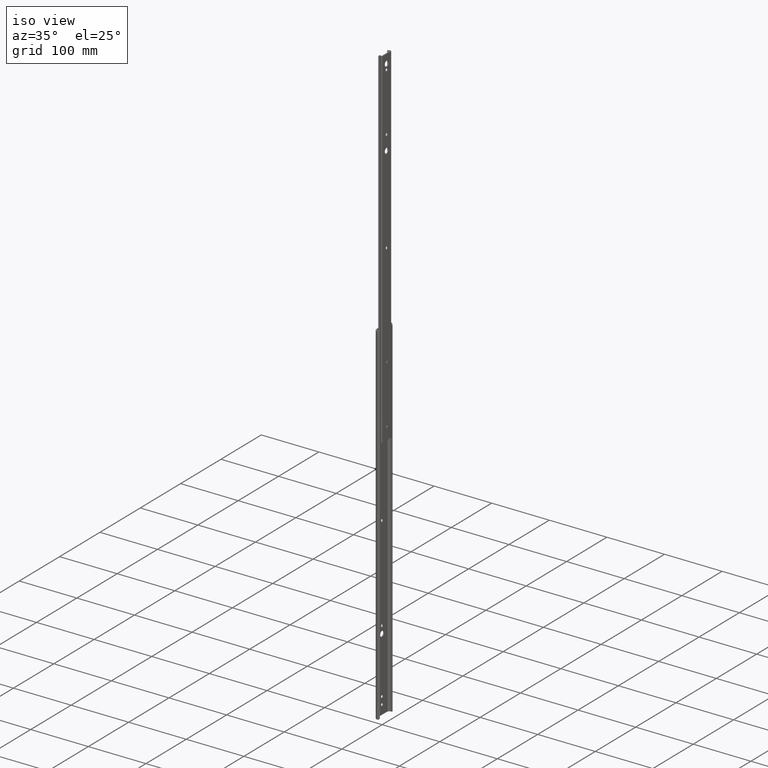
[diagram: clean part render]
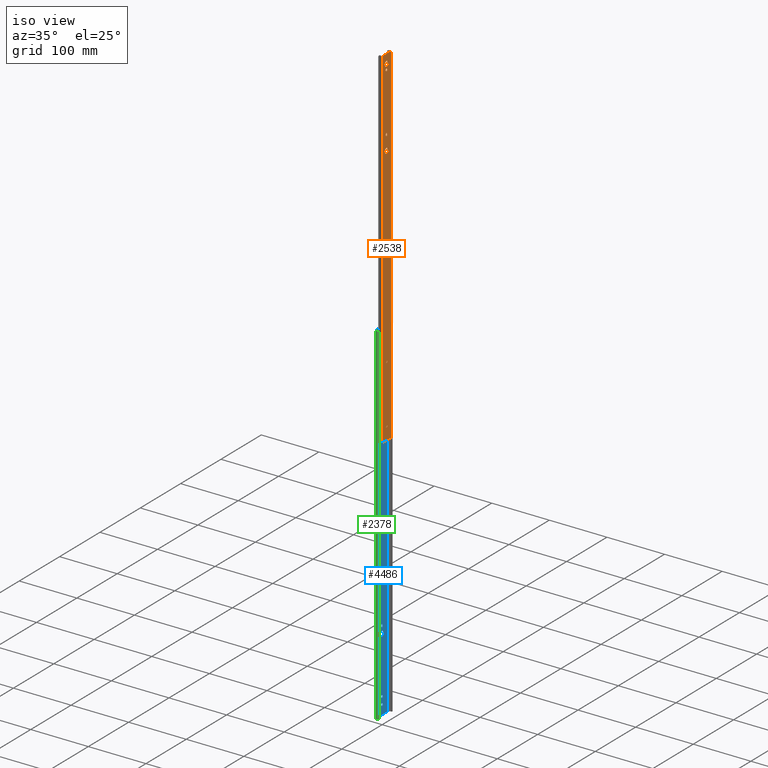
[diagram: same view with three faces highlighted in distinct colors, each labeled with its STEP entity id]
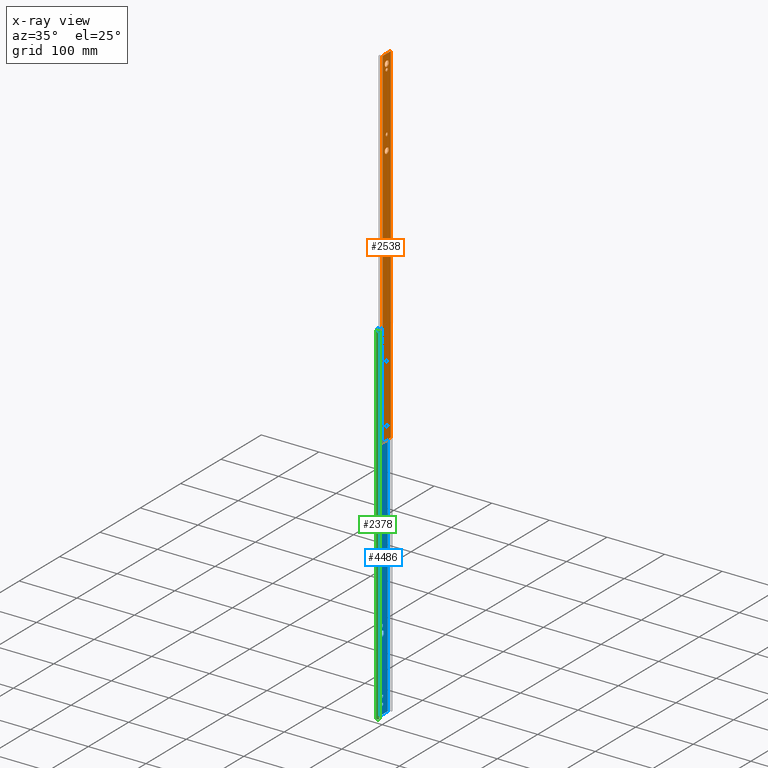
[diagram: x-ray of the same camera — body ghosted, the three highlighted faces saturated]
A machine part, iso view with three faces highlighted in distinct colors.
The next image is the same camera in x-ray (body ghosted, the three faces saturated) — at least one of them is partly hidden behind the body in this view.
Their STEP definitions:

[orange] entity #2538 — the highlighted planar face has unit normal (1, 0, 0).
#10 = VERTEX_POINT ( 'NONE', #2466 ) ;
#19 = DIRECTION ( 'NONE',  ( 0.0000000000000000000, 0.0000000000000000000, 1.000000000000000000 ) ) ;
#26 = CIRCLE ( 'NONE', #2643, 2.250000000000001776 ) ;
#33 = DIRECTION ( 'NONE',  ( -1.103235306215530105E-14, 1.000000000000000000, 0.0000000000000000000 ) ) ;
#38 = CIRCLE ( 'NONE', #4703, 2.249999999999641176 ) ;
#51 = EDGE_LOOP ( 'NONE', ( #1382, #2485, #3885, #3036 ) ) ;
#59 = ORIENTED_EDGE ( 'NONE', *, *, #3831, .F. ) ;
#71 = EDGE_CURVE ( 'NONE', #833, #2420, #4195, .T. ) ;
#78 = DIRECTION ( 'NONE',  ( -1.103235306215530262E-14, 1.000000000000000000, 0.0000000000000000000 ) ) ;
#94 = FACE_BOUND ( 'NONE', #422, .T. ) ;
#96 = VECTOR ( 'NONE', #4714, 1000.000000000000000 ) ;
#125 = EDGE_LOOP ( 'NONE', ( #4123, #3416, #3489, #4296 ) ) ;
#127 = LINE ( 'NONE', #3398, #3251 ) ;
#132 = AXIS2_PLACEMENT_3D ( 'NONE', #279, #3450, #648 ) ;
#174 = ORIENTED_EDGE ( 'NONE', *, *, #71, .F. ) ;
#186 = VERTEX_POINT ( 'NONE', #752 ) ;
#218 = DIRECTION ( 'NONE',  ( -0.0000000000000000000, -0.0000000000000000000, 1.000000000000000000 ) ) ;
#252 = LINE ( 'NONE', #5144, #3300 ) ;
#264 = CIRCLE ( 'NONE', #591, 4.750000000000000888 ) ;
#270 = LINE ( 'NONE', #4647, #5110 ) ;
#279 = CARTESIAN_POINT ( 'NONE',  ( -1.723411758436895479E-28, 1.562143405606533650E-14, -126.6000000000000227 ) ) ;
#280 = CARTESIAN_POINT ( 'NONE',  ( 4.412941224862033012E-15, -0.3999999999999919731, -23.14999999999999858 ) ) ;
#285 = AXIS2_PLACEMENT_3D ( 'NONE', #3616, #1174, #3142 ) ;
#300 = CARTESIAN_POINT ( 'NONE',  ( 2.482279438984920332E-14, -2.249999999999979572, -304.3999999999999773 ) ) ;
#307 = DIRECTION ( 'NONE',  ( -1.103235306215530262E-14, 1.000000000000000000, 0.0000000000000000000 ) ) ;
#354 = CARTESIAN_POINT ( 'NONE',  ( -2.923573561470756813E-14, 2.649999999999639311, -584.1999999999999318 ) ) ;
#364 = VECTOR ( 'NONE', #1747, 1000.000000000000000 ) ;
#368 = CARTESIAN_POINT ( 'NONE',  ( 1.137000000000000103E-13, -10.30605160652702068, -606.5999999999999091 ) ) ;
#378 = CIRCLE ( 'NONE', #3160, 2.250000000000000000 ) ;
#388 = EDGE_LOOP ( 'NONE', ( #2259, #1248, #4366, #3438 ) ) ;
#408 = DIRECTION ( 'NONE',  ( -1.103235306215530262E-14, 1.000000000000000000, 0.0000000000000000000 ) ) ;
#419 = LINE ( 'NONE', #4051, #778 ) ;
#422 = EDGE_LOOP ( 'NONE', ( #4014, #3342 ) ) ;
#462 = FACE_BOUND ( 'NONE', #125, .T. ) ;
#468 = DIRECTION ( 'NONE',  ( -1.103235306215530420E-14, 1.000000000000000000, 0.0000000000000000000 ) ) ;
#476 = DIRECTION ( 'NONE',  ( 0.0000000000000000000, 0.0000000000000000000, -1.000000000000000000 ) ) ;
#483 = DIRECTION ( 'NONE',  ( -1.103235306215530105E-14, 1.000000000000000000, 0.0000000000000000000 ) ) ;
#523 = CARTESIAN_POINT ( 'NONE',  ( -2.482279438984965454E-14, 2.250000000000020428, -305.1999999999999318 ) ) ;
#535 = CARTESIAN_POINT ( 'NONE',  ( -2.239583403857779695E-28, 2.030014260094981583E-14, -304.3999999999999773 ) ) ;
#550 = VERTEX_POINT ( 'NONE', #2216 ) ;
#577 = ORIENTED_EDGE ( 'NONE', *, *, #4394, .F. ) ;
#591 = AXIS2_PLACEMENT_3D ( 'NONE', #3898, #2649, #5139 ) ;
#612 = CARTESIAN_POINT ( 'NONE',  ( 2.482279438985029194E-14, -2.249999999999979572, -304.3999999999999773 ) ) ;
#623 = CARTESIAN_POINT ( 'NONE',  ( 1.137000000000000103E-13, -10.30605160652702068, 0.0000000000000000000 ) ) ;
#648 = DIRECTION ( 'NONE',  ( -1.103235306215530262E-14, 1.000000000000000000, 0.0000000000000000000 ) ) ;
#678 = EDGE_CURVE ( 'NONE', #2904, #4456, #790, .T. ) ;
#695 = AXIS2_PLACEMENT_3D ( 'NONE', #4222, #2311, #307 ) ;
#744 = CARTESIAN_POINT ( 'NONE',  ( -8.478460988836644674E-14, 10.30605160652707930, -606.5999999999999091 ) ) ;
#750 = DIRECTION ( 'NONE',  ( -1.103235306215530262E-14, 1.000000000000000000, 0.0000000000000000000 ) ) ;
#752 = CARTESIAN_POINT ( 'NONE',  ( 2.482279438985006475E-14, -2.249999999999958700, -482.2000000000000455 ) ) ;
#756 = VERTEX_POINT ( 'NONE', #1176 ) ;
#778 = VECTOR ( 'NONE', #2871, 1000.000000000000000 ) ;
#790 = LINE ( 'NONE', #368, #4012 ) ;
#806 = CIRCLE ( 'NONE', #4887, 4.750000000000000888 ) ;
#833 = VERTEX_POINT ( 'NONE', #3175 ) ;
#868 = ORIENTED_EDGE ( 'NONE', *, *, #4622, .F. ) ;
#893 = EDGE_CURVE ( 'NONE', #1008, #3894, #378, .T. ) ;
#930 = EDGE_CURVE ( 'NONE', #3312, #2379, #38, .T. ) ;
#963 = CARTESIAN_POINT ( 'NONE',  ( 4.412941224862033012E-15, -0.3999999999999919731, -586.4499999999995907 ) ) ;
#970 = CARTESIAN_POINT ( 'NONE',  ( 0.0000000000000000000, 9.950000000000000517E-14, -606.5999999999999091 ) ) ;
#972 = AXIS2_PLACEMENT_3D ( 'NONE', #535, #4650, #4953 ) ;
#994 = ORIENTED_EDGE ( 'NONE', *, *, #4995, .F. ) ;
#1008 = VERTEX_POINT ( 'NONE', #3584 ) ;
#1023 = VERTEX_POINT ( 'NONE', #1886 ) ;
#1098 = DIRECTION ( 'NONE',  ( 1.000000000000000000, 1.103235306215530262E-14, 0.0000000000000000000 ) ) ;
#1109 = EDGE_CURVE ( 'NONE', #1023, #186, #4096, .T. ) ;
#1115 = DIRECTION ( 'NONE',  ( 1.103235306215530262E-14, -1.000000000000000000, -0.0000000000000000000 ) ) ;
#1146 = DIRECTION ( 'NONE',  ( -1.103235306215530262E-14, 1.000000000000000000, 0.0000000000000000000 ) ) ;
#1174 = DIRECTION ( 'NONE',  ( 1.000000000000000000, 1.103235306215530262E-14, 0.0000000000000000000 ) ) ;
#1176 = CARTESIAN_POINT ( 'NONE',  ( 4.412941224863310967E-15, -0.4000000000000085154, -27.64999999999995239 ) ) ;
#1197 = VERTEX_POINT ( 'NONE', #1266 ) ;
#1200 = LINE ( 'NONE', #744, #1484 ) ;
#1212 = EDGE_CURVE ( 'NONE', #756, #3049, #4436, .T. ) ;
#1248 = ORIENTED_EDGE ( 'NONE', *, *, #3552, .F. ) ;
#1266 = CARTESIAN_POINT ( 'NONE',  ( 2.482279438984925696E-14, -2.249999999999984013, -127.3999999999999915 ) ) ;
#1295 = CARTESIAN_POINT ( 'NONE',  ( 2.482279438985034559E-14, -2.249999999999984013, -126.5999999999999943 ) ) ;
#1331 = CARTESIAN_POINT ( 'NONE',  ( -4.412941224862097699E-15, 0.3999999999999978573, -27.65000000000000213 ) ) ;
#1340 = EDGE_CURVE ( 'NONE', #1984, #2567, #3509, .T. ) ;
#1382 = ORIENTED_EDGE ( 'NONE', *, *, #3213, .F. ) ;
#1389 = AXIS2_PLACEMENT_3D ( 'NONE', #2167, #3782, #78 ) ;
#1416 = CARTESIAN_POINT ( 'NONE',  ( -2.482279438984965454E-14, 2.250000000000020428, -304.3999999999999773 ) ) ;
#1425 = CARTESIAN_POINT ( 'NONE',  ( 0.0000000000000000000, 9.950000000000000517E-14, -606.5999999999999091 ) ) ;
#1471 = CARTESIAN_POINT ( 'NONE',  ( 4.412941224862033012E-15, -0.3999999999999919731, -23.14999999999999858 ) ) ;
#1473 = AXIS2_PLACEMENT_3D ( 'NONE', #3964, #3657, #33 ) ;
#1484 = VECTOR ( 'NONE', #19, 1000.000000000000000 ) ;
#1500 = CARTESIAN_POINT ( 'NONE',  ( 4.412941224862033012E-15, -0.3999999999999919731, -581.9500000000002728 ) ) ;
#1645 = ORIENTED_EDGE ( 'NONE', *, *, #1212, .F. ) ;
#1717 = CARTESIAN_POINT ( 'NONE',  ( -8.478460988836644674E-14, 10.30605160652707930, -606.5999999999999091 ) ) ;
#1730 = ORIENTED_EDGE ( 'NONE', *, *, #4160, .F. ) ;
#1736 = VERTEX_POINT ( 'NONE', #2189 ) ;
#1747 = DIRECTION ( 'NONE',  ( -1.103235306215530262E-14, 1.000000000000000000, 0.0000000000000000000 ) ) ;
#1799 = FACE_BOUND ( 'NONE', #4524, .T. ) ;
#1811 = CIRCLE ( 'NONE', #4713, 2.249999999999641176 ) ;
#1827 = EDGE_CURVE ( 'NONE', #4773, #1197, #3008, .T. ) ;
#1828 = EDGE_CURVE ( 'NONE', #2420, #3312, #3684, .T. ) ;
#1870 = EDGE_LOOP ( 'NONE', ( #2299, #2424, #4443, #59 ) ) ;
#1886 = CARTESIAN_POINT ( 'NONE',  ( -2.482279438984987227E-14, 2.250000000000039968, -482.2000000000000455 ) ) ;
#1952 = CIRCLE ( 'NONE', #3906, 4.750000000000004441 ) ;
#1984 = VERTEX_POINT ( 'NONE', #1416 ) ;
#2015 = EDGE_CURVE ( 'NONE', #3430, #2787, #1200, .T. ) ;
#2046 = VERTEX_POINT ( 'NONE', #3642 ) ;
#2068 = CIRCLE ( 'NONE', #1473, 4.750000000000004441 ) ;
#2105 = PLANE ( 'NONE',  #4199 ) ;
#2153 = CARTESIAN_POINT ( 'NONE',  ( 4.412941224862033012E-15, -0.3999999999999919731, -584.1999999999999318 ) ) ;
#2167 = CARTESIAN_POINT ( 'NONE',  ( -4.412941224862102432E-15, 0.3999999999999983014, -584.1999999999999318 ) ) ;
#2176 = DIRECTION ( 'NONE',  ( 1.000000000000000000, 1.103235306215530262E-14, 0.0000000000000000000 ) ) ;
#2189 = CARTESIAN_POINT ( 'NONE',  ( 2.482279438984897297E-14, -2.249999999999958700, -482.9999999999999432 ) ) ;
#2196 = LINE ( 'NONE', #300, #3595 ) ;
#2198 = FACE_BOUND ( 'NONE', #5077, .T. ) ;
#2216 = CARTESIAN_POINT ( 'NONE',  ( 5.240367704530508024E-14, -4.750000000006108891, -152.4000000000000909 ) ) ;
#2233 = DIRECTION ( 'NONE',  ( -8.276690555865081331E-15, 1.000000000000000000, 0.0000000000000000000 ) ) ;
#2259 = ORIENTED_EDGE ( 'NONE', *, *, #5245, .F. ) ;
#2273 = LINE ( 'NONE', #5134, #4331 ) ;
#2275 = EDGE_CURVE ( 'NONE', #4699, #3360, #806, .T. ) ;
#2299 = ORIENTED_EDGE ( 'NONE', *, *, #1109, .F. ) ;
#2307 = EDGE_CURVE ( 'NONE', #3399, #1023, #127, .T. ) ;
#2311 = DIRECTION ( 'NONE',  ( 1.000000000000000000, 1.103235306215530262E-14, 0.0000000000000000000 ) ) ;
#2312 = CARTESIAN_POINT ( 'NONE',  ( -4.412941224862102432E-15, 0.3999999999999983014, -584.1999999999999318 ) ) ;
#2326 = CIRCLE ( 'NONE', #4105, 2.250000000000001776 ) ;
#2352 = VERTEX_POINT ( 'NONE', #1471 ) ;
#2379 = VERTEX_POINT ( 'NONE', #3830 ) ;
#2393 = VECTOR ( 'NONE', #2233, 1000.000000000000000 ) ;
#2403 = VERTEX_POINT ( 'NONE', #1500 ) ;
#2420 = VERTEX_POINT ( 'NONE', #4466 ) ;
#2424 = ORIENTED_EDGE ( 'NONE', *, *, #2307, .F. ) ;
#2438 = CARTESIAN_POINT ( 'NONE',  ( 5.240367704523767997E-14, -4.749999999999999112, -15.90000000000000036 ) ) ;
#2466 = CARTESIAN_POINT ( 'NONE',  ( -4.412941224862092177E-15, 0.3999999999999974132, -23.14999999999999858 ) ) ;
#2472 = CARTESIAN_POINT ( 'NONE',  ( -2.482279438984960090E-14, 2.250000000000015543, -127.3999999999999915 ) ) ;
#2474 = VERTEX_POINT ( 'NONE', #2782 ) ;
#2484 = CARTESIAN_POINT ( 'NONE',  ( 2.482279438984925696E-14, -2.249999999999984013, -126.6000000000000227 ) ) ;
#2485 = ORIENTED_EDGE ( 'NONE', *, *, #678, .F. ) ;
#2538 = ADVANCED_FACE ( 'NONE', ( #94, #462, #1799, #2198, #3017, #4245, #5082, #3817 ), #2105, .T. ) ;
#2567 = VERTEX_POINT ( 'NONE', #612 ) ;
#2575 = AXIS2_PLACEMENT_3D ( 'NONE', #3259, #4905, #3180 ) ;
#2615 = VERTEX_POINT ( 'NONE', #2472 ) ;
#2643 = AXIS2_PLACEMENT_3D ( 'NONE', #4070, #3266, #468 ) ;
#2649 = DIRECTION ( 'NONE',  ( 1.000000000000000000, 1.103235306215530262E-14, 0.0000000000000000000 ) ) ;
#2682 = EDGE_CURVE ( 'NONE', #3360, #4699, #264, .T. ) ;
#2700 = EDGE_CURVE ( 'NONE', #2379, #2403, #3472, .T. ) ;
#2705 = DIRECTION ( 'NONE',  ( -1.103235306215529947E-14, 1.000000000000000000, -0.0000000000000000000 ) ) ;
#2711 = CIRCLE ( 'NONE', #695, 2.250000000000000000 ) ;
#2726 = CIRCLE ( 'NONE', #285, 2.250000000000001776 ) ;
#2782 = CARTESIAN_POINT ( 'NONE',  ( -2.923573561471155029E-14, 2.649999999999999911, -25.39999999999999858 ) ) ;
#2787 = VERTEX_POINT ( 'NONE', #3928 ) ;
#2856 = CARTESIAN_POINT ( 'NONE',  ( -2.482279438984987227E-14, 2.250000000000039968, -482.9999999999999432 ) ) ;
#2871 = DIRECTION ( 'NONE',  ( 0.0000000000000000000, 0.0000000000000000000, -1.000000000000000000 ) ) ;
#2890 = DIRECTION ( 'NONE',  ( -1.103235306215529947E-14, 1.000000000000000000, 0.0000000000000000000 ) ) ;
#2904 = VERTEX_POINT ( 'NONE', #3683 ) ;
#2941 = CARTESIAN_POINT ( 'NONE',  ( -4.412941224862102432E-15, 0.3999999999999983014, -25.39999999999999858 ) ) ;
#2989 = CARTESIAN_POINT ( 'NONE',  ( -5.240367704523771152E-14, 4.750000000000002665, -15.90000000000000036 ) ) ;
#3008 = LINE ( 'NONE', #2484, #4364 ) ;
#3017 = FACE_BOUND ( 'NONE', #1870, .T. ) ;
#3036 = ORIENTED_EDGE ( 'NONE', *, *, #2015, .T. ) ;
#3049 = VERTEX_POINT ( 'NONE', #1331 ) ;
#3122 = EDGE_LOOP ( 'NONE', ( #1730, #3886, #577, #994, #1645 ) ) ;
#3126 = EDGE_CURVE ( 'NONE', #1197, #2615, #2711, .T. ) ;
#3135 = ORIENTED_EDGE ( 'NONE', *, *, #930, .F. ) ;
#3142 = DIRECTION ( 'NONE',  ( -1.103235306215530420E-14, 1.000000000000000000, 0.0000000000000000000 ) ) ;
#3160 = AXIS2_PLACEMENT_3D ( 'NONE', #5191, #4382, #750 ) ;
#3175 = CARTESIAN_POINT ( 'NONE',  ( 4.412941224863310967E-15, -0.4000000000000085154, -586.4499999999995907 ) ) ;
#3180 = DIRECTION ( 'NONE',  ( -1.103235306215530105E-14, 1.000000000000000000, 0.0000000000000000000 ) ) ;
#3188 = EDGE_CURVE ( 'NONE', #10, #2352, #3822, .T. ) ;
#3213 = EDGE_CURVE ( 'NONE', #4456, #2787, #252, .T. ) ;
#3251 = VECTOR ( 'NONE', #3943, 1000.000000000000000 ) ;
#3258 = DIRECTION ( 'NONE',  ( -1.103235306215530105E-14, 1.000000000000000000, 0.0000000000000000000 ) ) ;
#3259 = CARTESIAN_POINT ( 'NONE',  ( -4.476327200681612720E-28, 4.057454629544921572E-14, -482.2000000000000455 ) ) ;
#3266 = DIRECTION ( 'NONE',  ( 1.000000000000000000, 1.103235306215530262E-14, 0.0000000000000000000 ) ) ;
#3300 = VECTOR ( 'NONE', #2705, 1000.000000000000000 ) ;
#3312 = VERTEX_POINT ( 'NONE', #354 ) ;
#3342 = ORIENTED_EDGE ( 'NONE', *, *, #2682, .F. ) ;
#3360 = VERTEX_POINT ( 'NONE', #2438 ) ;
#3398 = CARTESIAN_POINT ( 'NONE',  ( -2.482279438984987227E-14, 2.250000000000039968, -482.2000000000000455 ) ) ;
#3399 = VERTEX_POINT ( 'NONE', #2856 ) ;
#3407 = EDGE_CURVE ( 'NONE', #4265, #550, #1952, .T. ) ;
#3416 = ORIENTED_EDGE ( 'NONE', *, *, #3607, .F. ) ;
#3430 = VERTEX_POINT ( 'NONE', #1717 ) ;
#3438 = ORIENTED_EDGE ( 'NONE', *, *, #1827, .F. ) ;
#3450 = DIRECTION ( 'NONE',  ( 1.000000000000000000, 1.103235306215530262E-14, 0.0000000000000000000 ) ) ;
#3472 = LINE ( 'NONE', #5192, #4667 ) ;
#3489 = ORIENTED_EDGE ( 'NONE', *, *, #893, .F. ) ;
#3509 = CIRCLE ( 'NONE', #972, 2.250000000000000000 ) ;
#3552 = EDGE_CURVE ( 'NONE', #2615, #2046, #270, .T. ) ;
#3584 = CARTESIAN_POINT ( 'NONE',  ( 2.482279438984920332E-14, -2.249999999999979572, -305.1999999999999318 ) ) ;
#3595 = VECTOR ( 'NONE', #4738, 1000.000000000000000 ) ;
#3607 = EDGE_CURVE ( 'NONE', #3894, #1984, #2273, .T. ) ;
#3616 = CARTESIAN_POINT ( 'NONE',  ( 4.412941224862033012E-15, -0.3999999999999919731, -25.39999999999999858 ) ) ;
#3642 = CARTESIAN_POINT ( 'NONE',  ( -2.482279438984960090E-14, 2.250000000000015543, -126.6000000000000227 ) ) ;
#3657 = DIRECTION ( 'NONE',  ( 1.000000000000000000, 1.103235306215530262E-14, 0.0000000000000000000 ) ) ;
#3683 = CARTESIAN_POINT ( 'NONE',  ( 1.137000000000000103E-13, -10.30605160652702068, -606.5999999999999091 ) ) ;
#3684 = CIRCLE ( 'NONE', #1389, 2.249999999999641176 ) ;
#3700 = DIRECTION ( 'NONE',  ( -1.103235306215530105E-14, 1.000000000000000000, 0.0000000000000000000 ) ) ;
#3711 = CARTESIAN_POINT ( 'NONE',  ( 6.734777570858304193E-26, -6.104570378517766019E-12, -152.4000000000000909 ) ) ;
#3782 = DIRECTION ( 'NONE',  ( 1.000000000000000000, 1.103235306215530262E-14, 0.0000000000000000000 ) ) ;
#3791 = DIRECTION ( 'NONE',  ( -1.103235306215530262E-14, 1.000000000000000000, 0.0000000000000000000 ) ) ;
#3817 = FACE_OUTER_BOUND ( 'NONE', #51, .T. ) ;
#3822 = LINE ( 'NONE', #280, #96 ) ;
#3830 = CARTESIAN_POINT ( 'NONE',  ( -4.412941224862092177E-15, 0.3999999999999974132, -581.9500000000002728 ) ) ;
#3831 = EDGE_CURVE ( 'NONE', #186, #1736, #419, .T. ) ;
#3885 = ORIENTED_EDGE ( 'NONE', *, *, #4479, .T. ) ;
#3886 = ORIENTED_EDGE ( 'NONE', *, *, #3188, .F. ) ;
#3894 = VERTEX_POINT ( 'NONE', #523 ) ;
#3898 = CARTESIAN_POINT ( 'NONE',  ( -2.148207002476486499E-29, 1.947188410644291380E-15, -15.90000000000000036 ) ) ;
#3906 = AXIS2_PLACEMENT_3D ( 'NONE', #3711, #4924, #483 ) ;
#3928 = CARTESIAN_POINT ( 'NONE',  ( -8.478460988836644674E-14, 10.30605160652707930, 0.0000000000000000000 ) ) ;
#3943 = DIRECTION ( 'NONE',  ( -0.0000000000000000000, -0.0000000000000000000, 1.000000000000000000 ) ) ;
#3964 = CARTESIAN_POINT ( 'NONE',  ( 6.734777570858304193E-26, -6.104570378517766019E-12, -152.4000000000000909 ) ) ;
#3999 = ORIENTED_EDGE ( 'NONE', *, *, #2700, .F. ) ;
#4012 = VECTOR ( 'NONE', #4102, 1000.000000000000000 ) ;
#4014 = ORIENTED_EDGE ( 'NONE', *, *, #2275, .F. ) ;
#4015 = VECTOR ( 'NONE', #408, 1000.000000000000000 ) ;
#4039 = CARTESIAN_POINT ( 'NONE',  ( 4.412941224862033012E-15, -0.3999999999999919731, -27.65000000000000213 ) ) ;
#4051 = CARTESIAN_POINT ( 'NONE',  ( 2.482279438984897297E-14, -2.249999999999958700, -482.2000000000000455 ) ) ;
#4061 = ORIENTED_EDGE ( 'NONE', *, *, #3407, .F. ) ;
#4066 = ORIENTED_EDGE ( 'NONE', *, *, #1828, .F. ) ;
#4070 = CARTESIAN_POINT ( 'NONE',  ( -4.412941224862102432E-15, 0.3999999999999983014, -25.39999999999999858 ) ) ;
#4096 = CIRCLE ( 'NONE', #2575, 2.249999999999999556 ) ;
#4102 = DIRECTION ( 'NONE',  ( 0.0000000000000000000, 0.0000000000000000000, 1.000000000000000000 ) ) ;
#4105 = AXIS2_PLACEMENT_3D ( 'NONE', #2941, #2176, #4146 ) ;
#4123 = ORIENTED_EDGE ( 'NONE', *, *, #1340, .F. ) ;
#4128 = CARTESIAN_POINT ( 'NONE',  ( -2.148207002476486499E-29, 1.947188410644291380E-15, -15.90000000000000036 ) ) ;
#4146 = DIRECTION ( 'NONE',  ( -1.103235306215530420E-14, 1.000000000000000000, 0.0000000000000000000 ) ) ;
#4149 = ORIENTED_EDGE ( 'NONE', *, *, #5046, .F. ) ;
#4160 = EDGE_CURVE ( 'NONE', #2352, #756, #2726, .T. ) ;
#4195 = LINE ( 'NONE', #963, #364 ) ;
#4199 = AXIS2_PLACEMENT_3D ( 'NONE', #1425, #4677, #2890 ) ;
#4222 = CARTESIAN_POINT ( 'NONE',  ( -1.739624641474453248E-28, 1.576839167196301363E-14, -127.3999999999999915 ) ) ;
#4245 = FACE_BOUND ( 'NONE', #388, .T. ) ;
#4265 = VERTEX_POINT ( 'NONE', #4812 ) ;
#4296 = ORIENTED_EDGE ( 'NONE', *, *, #4857, .F. ) ;
#4308 = CARTESIAN_POINT ( 'NONE',  ( -4.492540083719169817E-28, 4.072150391134688654E-14, -482.9999999999999432 ) ) ;
#4331 = VECTOR ( 'NONE', #4736, 1000.000000000000000 ) ;
#4364 = VECTOR ( 'NONE', #476, 1000.000000000000000 ) ;
#4366 = ORIENTED_EDGE ( 'NONE', *, *, #3126, .F. ) ;
#4370 = CIRCLE ( 'NONE', #132, 2.250000000000000000 ) ;
#4382 = DIRECTION ( 'NONE',  ( 1.000000000000000000, 1.103235306215530262E-14, 0.0000000000000000000 ) ) ;
#4394 = EDGE_CURVE ( 'NONE', #2474, #10, #26, .T. ) ;
#4436 = LINE ( 'NONE', #4039, #4015 ) ;
#4443 = ORIENTED_EDGE ( 'NONE', *, *, #4561, .F. ) ;
#4456 = VERTEX_POINT ( 'NONE', #623 ) ;
#4466 = CARTESIAN_POINT ( 'NONE',  ( -4.412941224862097699E-15, 0.3999999999999978573, -586.4499999999995907 ) ) ;
#4479 = EDGE_CURVE ( 'NONE', #2904, #3430, #4659, .T. ) ;
#4516 = DIRECTION ( 'NONE',  ( 1.000000000000000000, 1.103235306215530262E-14, 0.0000000000000000000 ) ) ;
#4524 = EDGE_LOOP ( 'NONE', ( #4061, #868 ) ) ;
#4559 = DIRECTION ( 'NONE',  ( 1.000000000000000000, 1.103235306215530262E-14, 0.0000000000000000000 ) ) ;
#4561 = EDGE_CURVE ( 'NONE', #1736, #3399, #4683, .T. ) ;
#4614 = AXIS2_PLACEMENT_3D ( 'NONE', #4308, #1098, #3258 ) ;
#4622 = EDGE_CURVE ( 'NONE', #550, #4265, #2068, .T. ) ;
#4647 = CARTESIAN_POINT ( 'NONE',  ( -2.482279438984960090E-14, 2.250000000000015543, -126.6000000000000227 ) ) ;
#4650 = DIRECTION ( 'NONE',  ( 1.000000000000000000, 1.103235306215530262E-14, 0.0000000000000000000 ) ) ;
#4659 = LINE ( 'NONE', #970, #2393 ) ;
#4667 = VECTOR ( 'NONE', #1115, 1000.000000000000000 ) ;
#4677 = DIRECTION ( 'NONE',  ( 1.000000000000000000, 1.103235306215529947E-14, -0.0000000000000000000 ) ) ;
#4683 = CIRCLE ( 'NONE', #4614, 2.249999999999999556 ) ;
#4699 = VERTEX_POINT ( 'NONE', #2989 ) ;
#4703 = AXIS2_PLACEMENT_3D ( 'NONE', #2312, #4717, #1146 ) ;
#4713 = AXIS2_PLACEMENT_3D ( 'NONE', #2153, #4516, #3791 ) ;
#4714 = DIRECTION ( 'NONE',  ( 1.103235306215530262E-14, -1.000000000000000000, -0.0000000000000000000 ) ) ;
#4717 = DIRECTION ( 'NONE',  ( 1.000000000000000000, 1.103235306215530262E-14, 0.0000000000000000000 ) ) ;
#4736 = DIRECTION ( 'NONE',  ( -0.0000000000000000000, -0.0000000000000000000, 1.000000000000000000 ) ) ;
#4738 = DIRECTION ( 'NONE',  ( 0.0000000000000000000, 0.0000000000000000000, -1.000000000000000000 ) ) ;
#4773 = VERTEX_POINT ( 'NONE', #1295 ) ;
#4812 = CARTESIAN_POINT ( 'NONE',  ( -5.240367704517038066E-14, 4.749999999993899991, -152.4000000000000909 ) ) ;
#4857 = EDGE_CURVE ( 'NONE', #2567, #1008, #2196, .T. ) ;
#4887 = AXIS2_PLACEMENT_3D ( 'NONE', #4128, #4559, #3700 ) ;
#4905 = DIRECTION ( 'NONE',  ( 1.000000000000000000, 1.103235306215530262E-14, 0.0000000000000000000 ) ) ;
#4924 = DIRECTION ( 'NONE',  ( 1.000000000000000000, 1.103235306215530262E-14, 0.0000000000000000000 ) ) ;
#4953 = DIRECTION ( 'NONE',  ( -1.103235306215530262E-14, 1.000000000000000000, 0.0000000000000000000 ) ) ;
#4995 = EDGE_CURVE ( 'NONE', #3049, #2474, #2326, .T. ) ;
#5046 = EDGE_CURVE ( 'NONE', #2403, #833, #1811, .T. ) ;
#5077 = EDGE_LOOP ( 'NONE', ( #4149, #3999, #3135, #4066, #174 ) ) ;
#5082 = FACE_BOUND ( 'NONE', #3122, .T. ) ;
#5110 = VECTOR ( 'NONE', #218, 1000.000000000000000 ) ;
#5134 = CARTESIAN_POINT ( 'NONE',  ( -2.482279438984965454E-14, 2.250000000000020428, -304.3999999999999773 ) ) ;
#5139 = DIRECTION ( 'NONE',  ( -1.103235306215530105E-14, 1.000000000000000000, 0.0000000000000000000 ) ) ;
#5144 = CARTESIAN_POINT ( 'NONE',  ( 0.0000000000000000000, 9.950000000000000517E-14, 0.0000000000000000000 ) ) ;
#5191 = CARTESIAN_POINT ( 'NONE',  ( -2.255796286895336343E-28, 2.044710021684748034E-14, -305.1999999999999318 ) ) ;
#5192 = CARTESIAN_POINT ( 'NONE',  ( 4.412941224862033012E-15, -0.3999999999999919731, -581.9500000000002728 ) ) ;
#5245 = EDGE_CURVE ( 'NONE', #2046, #4773, #4370, .T. ) ;

[blue] entity #4486 — the highlighted planar face has unit normal (1, -0, 0).
#13 = EDGE_CURVE ( 'NONE', #805, #3837, #1883, .T. ) ;
#21 = AXIS2_PLACEMENT_3D ( 'NONE', #2487, #1290, #1661 ) ;
#22 = AXIS2_PLACEMENT_3D ( 'NONE', #2166, #3803, #575 ) ;
#31 = CIRCLE ( 'NONE', #2898, 2.250000000000005329 ) ;
#32 = CARTESIAN_POINT ( 'NONE',  ( 1.461933268199342504E-14, 2.250000000001150635, -469.5000000000000568 ) ) ;
#36 = VERTEX_POINT ( 'NONE', #2524 ) ;
#53 = CARTESIAN_POINT ( 'NONE',  ( 8.632441935927393671E-14, 13.28582827844788916, 0.0000000000000000000 ) ) ;
#67 = CARTESIAN_POINT ( 'NONE',  ( -1.461933268197844300E-14, -2.249999999998845368, -470.3000000000000114 ) ) ;
#68 = VERTEX_POINT ( 'NONE', #4629 ) ;
#83 = ORIENTED_EDGE ( 'NONE', *, *, #4037, .F. ) ;
#95 = VERTEX_POINT ( 'NONE', #3848 ) ;
#105 = VERTEX_POINT ( 'NONE', #2152 ) ;
#119 = EDGE_CURVE ( 'NONE', #2639, #5097, #2640, .T. ) ;
#122 = ORIENTED_EDGE ( 'NONE', *, *, #950, .F. ) ;
#144 = DIRECTION ( 'NONE',  ( 6.497481191993755816E-15, 1.000000000000000000, 0.0000000000000000000 ) ) ;
#146 = EDGE_CURVE ( 'NONE', #316, #4340, #1283, .T. ) ;
#164 = DIRECTION ( 'NONE',  ( 1.000000000000000000, -6.497481191993753449E-15, 0.0000000000000000000 ) ) ;
#171 = CARTESIAN_POINT ( 'NONE',  ( 4.787134332115642588E-14, 7.367677090030496423, -1.121813326174415426 ) ) ;
#185 = VECTOR ( 'NONE', #4157, 1000.000000000000000 ) ;
#189 = VERTEX_POINT ( 'NONE', #1141 ) ;
#215 = AXIS2_PLACEMENT_3D ( 'NONE', #237, #2241, #2295 ) ;
#219 = ORIENTED_EDGE ( 'NONE', *, *, #2925, .F. ) ;
#227 = CARTESIAN_POINT ( 'NONE',  ( 2.598992476797951267E-15, 0.4000000000000691891, -28.60000000000000497 ) ) ;
#234 = ORIENTED_EDGE ( 'NONE', *, *, #5155, .F. ) ;
#237 = CARTESIAN_POINT ( 'NONE',  ( 1.201525051188588167E-29, 1.849216666712504918E-15, -126.5999999999999943 ) ) ;
#266 = DIRECTION ( 'NONE',  ( 1.000000000000000000, -6.497481191993754238E-15, 0.0000000000000000000 ) ) ;
#281 = CARTESIAN_POINT ( 'NONE',  ( -1.461933268222152891E-14, -2.250000000036257664, -127.4000000000000341 ) ) ;
#303 = AXIS2_PLACEMENT_3D ( 'NONE', #2796, #2030, #2873 ) ;
#310 = ORIENTED_EDGE ( 'NONE', *, *, #649, .F. ) ;
#316 = VERTEX_POINT ( 'NONE', #2118 ) ;
#319 = EDGE_CURVE ( 'NONE', #5043, #463, #2303, .T. ) ;
#353 = CIRCLE ( 'NONE', #3643, 2.249999999999863221 ) ;
#367 = AXIS2_PLACEMENT_3D ( 'NONE', #2830, #3651, #3708 ) ;
#369 = VERTEX_POINT ( 'NONE', #3732 ) ;
#400 = VERTEX_POINT ( 'NONE', #4458 ) ;
#404 = EDGE_CURVE ( 'NONE', #1420, #467, #711, .T. ) ;
#418 = EDGE_LOOP ( 'NONE', ( #3881, #4945, #5135, #1298, #2919 ) ) ;
#433 = EDGE_LOOP ( 'NONE', ( #1860, #234 ) ) ;
#453 = VERTEX_POINT ( 'NONE', #555 ) ;
#463 = VERTEX_POINT ( 'NONE', #4590 ) ;
#466 = EDGE_CURVE ( 'NONE', #2765, #2218, #1293, .T. ) ;
#467 = VERTEX_POINT ( 'NONE', #1418 ) ;
#493 = CARTESIAN_POINT ( 'NONE',  ( 4.771262743228146904E-14, 7.360230118118327169, -1.000000000000000000 ) ) ;
#498 = LINE ( 'NONE', #869, #1617 ) ;
#501 = DIRECTION ( 'NONE',  ( 6.497481191993753449E-15, 1.000000000000000000, 0.0000000000000000000 ) ) ;
#513 = ORIENTED_EDGE ( 'NONE', *, *, #1407, .F. ) ;
#514 = CIRCLE ( 'NONE', #1525, 2.250000000000005329 ) ;
#522 = VERTEX_POINT ( 'NONE', #3809 ) ;
#526 = DIRECTION ( 'NONE',  ( 1.000000000000000000, -6.497481191993754238E-15, 0.0000000000000000000 ) ) ;
#531 = CARTESIAN_POINT ( 'NONE',  ( -2.598992476797510294E-15, -0.4000000000000012990, -581.0000000000001137 ) ) ;
#532 = EDGE_CURVE ( 'NONE', #4864, #3374, #2245, .T. ) ;
#555 = CARTESIAN_POINT ( 'NONE',  ( -1.461933268222152891E-14, -2.250000000036257664, -126.6000000000002359 ) ) ;
#561 = EDGE_CURVE ( 'NONE', #5100, #4636, #1716, .T. ) ;
#562 = DIRECTION ( 'NONE',  ( 6.497481191993753449E-15, 1.000000000000000000, 0.0000000000000000000 ) ) ;
#568 = EDGE_CURVE ( 'NONE', #522, #1422, #3074, .T. ) ;
#570 = CARTESIAN_POINT ( 'NONE',  ( 4.873110893995315126E-14, 7.500000000000000000, -2.199999999999997957 ) ) ;
#571 = LINE ( 'NONE', #3325, #3339 ) ;
#575 = DIRECTION ( 'NONE',  ( 6.497481191993755027E-15, 1.000000000000000000, 0.0000000000000000000 ) ) ;
#616 = AXIS2_PLACEMENT_3D ( 'NONE', #5006, #1035, #562 ) ;
#631 = AXIS2_PLACEMENT_3D ( 'NONE', #2677, #749, #2701 ) ;
#632 = CIRCLE ( 'NONE', #3163, 2.250000000000005329 ) ;
#633 = DIRECTION ( 'NONE',  ( -6.497481191993755816E-15, -1.000000000000000000, -0.0000000000000000000 ) ) ;
#649 = EDGE_CURVE ( 'NONE', #5097, #3392, #1156, .T. ) ;
#655 = FACE_BOUND ( 'NONE', #3463, .T. ) ;
#668 = VERTEX_POINT ( 'NONE', #4892 ) ;
#679 = EDGE_CURVE ( 'NONE', #36, #105, #31, .T. ) ;
#680 = DIRECTION ( 'NONE',  ( -0.0000000000000000000, -0.0000000000000000000, -1.000000000000000000 ) ) ;
#681 = ORIENTED_EDGE ( 'NONE', *, *, #1476, .F. ) ;
#687 = ORIENTED_EDGE ( 'NONE', *, *, #1019, .F. ) ;
#698 = DIRECTION ( 'NONE',  ( -0.0000000000000000000, -0.0000000000000000000, -1.000000000000000000 ) ) ;
#710 = DIRECTION ( 'NONE',  ( -6.497481191993754238E-15, -1.000000000000000000, -0.0000000000000000000 ) ) ;
#711 = CIRCLE ( 'NONE', #367, 2.250000000000005329 ) ;
#713 = DIRECTION ( 'NONE',  ( 1.000000000000000000, -6.497481191993753449E-15, 0.0000000000000000000 ) ) ;
#721 = CARTESIAN_POINT ( 'NONE',  ( -5.442694905877232259E-14, -8.360230118118328946, -1.000000000000000000 ) ) ;
#722 = VERTEX_POINT ( 'NONE', #2024 ) ;
#726 = LINE ( 'NONE', #1089, #3847 ) ;
#749 = DIRECTION ( 'NONE',  ( 1.000000000000000000, -6.497481191993754238E-15, 0.0000000000000000000 ) ) ;
#755 = ORIENTED_EDGE ( 'NONE', *, *, #679, .F. ) ;
#757 = CARTESIAN_POINT ( 'NONE',  ( -2.598992476797515421E-15, -0.4000000000000021316, -583.2499999999998863 ) ) ;
#761 = CARTESIAN_POINT ( 'NONE',  ( -1.461933268222152891E-14, -2.250000000036257664, -127.4000000000000341 ) ) ;
#777 = CARTESIAN_POINT ( 'NONE',  ( -1.461933268197844300E-14, -2.249999999998845368, -469.5000000000000568 ) ) ;
#783 = AXIS2_PLACEMENT_3D ( 'NONE', #1363, #3887, #3377 ) ;
#804 = EDGE_CURVE ( 'NONE', #522, #5204, #1066, .T. ) ;
#805 = VERTEX_POINT ( 'NONE', #2305 ) ;
#810 = VECTOR ( 'NONE', #1672, 1000.000000000000000 ) ;
#815 = CARTESIAN_POINT ( 'NONE',  ( -2.598992476797470062E-15, -0.3999999999999951372, -28.60000000000000497 ) ) ;
#828 = DIRECTION ( 'NONE',  ( 6.497481191993755816E-15, 1.000000000000000000, 0.0000000000000000000 ) ) ;
#839 = CARTESIAN_POINT ( 'NONE',  ( 2.598992476796943103E-15, 0.3999999999999140354, -581.0000000000001137 ) ) ;
#856 = VECTOR ( 'NONE', #984, 1000.000000000000000 ) ;
#861 = EDGE_CURVE ( 'NONE', #105, #5157, #3581, .T. ) ;
#862 = EDGE_LOOP ( 'NONE', ( #4294, #2584, #2057, #4459, #4056, #2746, #4468, #4720, #5054, #681, #3367, #4210, #4578 ) ) ;
#869 = CARTESIAN_POINT ( 'NONE',  ( 8.632441935927393671E-14, 13.28582827844788916, -609.5999999999999091 ) ) ;
#904 = CARTESIAN_POINT ( 'NONE',  ( -1.461933268221442916E-14, -2.250000000035164760, -304.3999999999999773 ) ) ;
#905 = VERTEX_POINT ( 'NONE', #3108 ) ;
#938 = CARTESIAN_POINT ( 'NONE',  ( 1.461933268198595295E-14, 2.250000000000001332, -41.70000000000001705 ) ) ;
#943 = FACE_BOUND ( 'NONE', #3353, .T. ) ;
#947 = ORIENTED_EDGE ( 'NONE', *, *, #3634, .F. ) ;
#950 = EDGE_CURVE ( 'NONE', #3837, #36, #5197, .T. ) ;
#955 = VECTOR ( 'NONE', #4287, 1000.000000000000000 ) ;
#964 = CARTESIAN_POINT ( 'NONE',  ( 3.086303566193069592E-14, 4.749999999993899102, -482.5999999999999091 ) ) ;
#965 = DIRECTION ( 'NONE',  ( 0.0000000000000000000, 0.0000000000000000000, 1.000000000000000000 ) ) ;
#984 = DIRECTION ( 'NONE',  ( 0.0000000000000000000, 0.0000000000000000000, 1.000000000000000000 ) ) ;
#997 = DIRECTION ( 'NONE',  ( 1.000000000000000000, -6.497481191993753449E-15, 0.0000000000000000000 ) ) ;
#1004 = DIRECTION ( 'NONE',  ( 0.0000000000000000000, 0.0000000000000000000, 1.000000000000000000 ) ) ;
#1007 = CARTESIAN_POINT ( 'NONE',  ( -2.598992476797515421E-15, -0.4000000000000021316, -578.7500000000002274 ) ) ;
#1018 = PLANE ( 'NONE',  #4513 ) ;
#1019 = EDGE_CURVE ( 'NONE', #453, #4226, #4305, .T. ) ;
#1020 = DIRECTION ( 'NONE',  ( 6.497481191993750294E-15, 1.000000000000000000, 0.0000000000000000000 ) ) ;
#1035 = DIRECTION ( 'NONE',  ( 1.000000000000000000, -6.497481191993754238E-15, 0.0000000000000000000 ) ) ;
#1050 = CARTESIAN_POINT ( 'NONE',  ( -1.461933268198592455E-14, -2.249999999999996891, -41.70000000000001705 ) ) ;
#1051 = VECTOR ( 'NONE', #3502, 1000.000000000000000 ) ;
#1066 = LINE ( 'NONE', #2702, #4609 ) ;
#1076 = CARTESIAN_POINT ( 'NONE',  ( -1.461933268198527138E-14, -2.249999999999896083, -40.89999999999997726 ) ) ;
#1081 = CARTESIAN_POINT ( 'NONE',  ( 2.598992476799391727E-15, 0.4000000000002908451, -578.7500000000002274 ) ) ;
#1089 = CARTESIAN_POINT ( 'NONE',  ( -2.598992476797501616E-15, -0.3999999999999999667, -595.9499999999998181 ) ) ;
#1094 = LINE ( 'NONE', #1884, #2374 ) ;
#1097 = VERTEX_POINT ( 'NONE', #777 ) ;
#1118 = DIRECTION ( 'NONE',  ( 1.000000000000000000, -6.497481191993754238E-15, 0.0000000000000000000 ) ) ;
#1123 = EDGE_CURVE ( 'NONE', #1975, #3547, #4088, .T. ) ;
#1141 = CARTESIAN_POINT ( 'NONE',  ( 8.632441935927393671E-14, 13.28582827844788916, -609.5999999999999091 ) ) ;
#1156 = LINE ( 'NONE', #2771, #2479 ) ;
#1160 = DIRECTION ( 'NONE',  ( -7.914797957524653599E-16, -0.1218133261744156343, -0.9925530280878323008 ) ) ;
#1187 = ORIENTED_EDGE ( 'NONE', *, *, #13, .F. ) ;
#1207 = CARTESIAN_POINT ( 'NONE',  ( -1.461933268198592455E-14, -2.249999999999996891, -41.70000000000001705 ) ) ;
#1216 = CARTESIAN_POINT ( 'NONE',  ( 2.598992476797496094E-15, 0.3999999999999991340, -15.90000000000000391 ) ) ;
#1233 = DIRECTION ( 'NONE',  ( 6.497481191993755027E-15, 1.000000000000000000, 0.0000000000000000000 ) ) ;
#1283 = CIRCLE ( 'NONE', #2973, 1.000000000000000888 ) ;
#1290 = DIRECTION ( 'NONE',  ( 1.000000000000000000, -6.497481191993754238E-15, 0.0000000000000000000 ) ) ;
#1293 = CIRCLE ( 'NONE', #2313, 2.249999999999863221 ) ;
#1294 = DIRECTION ( 'NONE',  ( 1.000000000000000000, -6.497481191993754238E-15, 0.0000000000000000000 ) ) ;
#1298 = ORIENTED_EDGE ( 'NONE', *, *, #466, .F. ) ;
#1299 = CARTESIAN_POINT ( 'NONE',  ( 1.461933268199345344E-14, 2.250000000001150191, -470.2999999999999545 ) ) ;
#1343 = DIRECTION ( 'NONE',  ( 6.497481191993753449E-15, 1.000000000000000000, 0.0000000000000000000 ) ) ;
#1354 = CARTESIAN_POINT ( 'NONE',  ( -1.461933268221442916E-14, -2.250000000035164760, -305.2000000000000455 ) ) ;
#1363 = CARTESIAN_POINT ( 'NONE',  ( 2.040444164743638317E-27, 3.140361787053557620E-13, -127.4000000000000341 ) ) ;
#1407 = EDGE_CURVE ( 'NONE', #722, #3688, #726, .T. ) ;
#1411 = DIRECTION ( 'NONE',  ( 6.497481191993753449E-15, 1.000000000000000000, 0.0000000000000000000 ) ) ;
#1418 = CARTESIAN_POINT ( 'NONE',  ( 2.598992476797487022E-15, 0.3999999999999977462, -13.64999999999999858 ) ) ;
#1420 = VERTEX_POINT ( 'NONE', #4351 ) ;
#1422 = VERTEX_POINT ( 'NONE', #2302 ) ;
#1454 = LINE ( 'NONE', #3954, #1478 ) ;
#1468 = EDGE_CURVE ( 'NONE', #3392, #1097, #2489, .T. ) ;
#1470 = EDGE_CURVE ( 'NONE', #5204, #3051, #2724, .T. ) ;
#1476 = EDGE_CURVE ( 'NONE', #4480, #4544, #1454, .T. ) ;
#1478 = VECTOR ( 'NONE', #1934, 1000.000000000000227 ) ;
#1502 = EDGE_CURVE ( 'NONE', #668, #2428, #3873, .T. ) ;
#1525 = AXIS2_PLACEMENT_3D ( 'NONE', #3318, #3344, #144 ) ;
#1527 = ORIENTED_EDGE ( 'NONE', *, *, #3048, .F. ) ;
#1536 = EDGE_CURVE ( 'NONE', #2854, #95, #2996, .T. ) ;
#1572 = VERTEX_POINT ( 'NONE', #53 ) ;
#1614 = CARTESIAN_POINT ( 'NONE',  ( 2.598992476796957302E-15, 0.3999999999999162004, -593.7000000000000455 ) ) ;
#1617 = VECTOR ( 'NONE', #2112, 1000.000000000000000 ) ;
#1618 = ORIENTED_EDGE ( 'NONE', *, *, #4038, .F. ) ;
#1632 = CARTESIAN_POINT ( 'NONE',  ( 2.598992476797487022E-15, 0.3999999999999977462, -26.34999999999999787 ) ) ;
#1661 = DIRECTION ( 'NONE',  ( 6.497481191993754238E-15, 1.000000000000000000, 0.0000000000000000000 ) ) ;
#1663 = VERTEX_POINT ( 'NONE', #2430 ) ;
#1672 = DIRECTION ( 'NONE',  ( -0.0000000000000000000, -0.0000000000000000000, -1.000000000000000000 ) ) ;
#1675 = DIRECTION ( 'NONE',  ( 0.0000000000000000000, 1.000000000000000000, 0.0000000000000000000 ) ) ;
#1712 = CARTESIAN_POINT ( 'NONE',  ( -2.598992476797466512E-15, -0.3999999999999945821, -18.15000000000000924 ) ) ;
#1716 = CIRCLE ( 'NONE', #2146, 2.249999999999948486 ) ;
#1732 = FACE_BOUND ( 'NONE', #5124, .T. ) ;
#1760 = EDGE_CURVE ( 'NONE', #2428, #1822, #5222, .T. ) ;
#1769 = DIRECTION ( 'NONE',  ( 6.497481191993750294E-15, 1.000000000000000000, 0.0000000000000000000 ) ) ;
#1770 = CARTESIAN_POINT ( 'NONE',  ( 1.461933268198627796E-14, 2.250000000000051070, -40.89999999999999147 ) ) ;
#1772 = CARTESIAN_POINT ( 'NONE',  ( -4.873110893995315126E-14, -7.500000000000000000, -3.699999999999999734 ) ) ;
#1785 = VECTOR ( 'NONE', #4259, 1000.000000000000000 ) ;
#1791 = EDGE_CURVE ( 'NONE', #2969, #668, #1805, .T. ) ;
#1805 = CIRCLE ( 'NONE', #4272, 2.250000000036298520 ) ;
#1814 = CIRCLE ( 'NONE', #2834, 1.000000000000000888 ) ;
#1822 = VERTEX_POINT ( 'NONE', #904 ) ;
#1825 = CARTESIAN_POINT ( 'NONE',  ( 0.0000000000000000000, -13.28582827844802061, -609.5999999999999091 ) ) ;
#1832 = DIRECTION ( 'NONE',  ( 6.497481191993755816E-15, 1.000000000000000000, 0.0000000000000000000 ) ) ;
#1837 = FACE_BOUND ( 'NONE', #2041, .T. ) ;
#1839 = VERTEX_POINT ( 'NONE', #4161 ) ;
#1854 = DIRECTION ( 'NONE',  ( 1.000000000000000000, -6.497481191993754238E-15, 0.0000000000000000000 ) ) ;
#1860 = ORIENTED_EDGE ( 'NONE', *, *, #319, .F. ) ;
#1877 = CARTESIAN_POINT ( 'NONE',  ( 1.461933268222916192E-14, 2.250000000037432279, -305.2000000000000455 ) ) ;
#1883 = CIRCLE ( 'NONE', #4691, 2.250000000000005329 ) ;
#1884 = CARTESIAN_POINT ( 'NONE',  ( 8.632441935927393671E-14, 13.28582827844788916, 0.0000000000000000000 ) ) ;
#1894 = EDGE_CURVE ( 'NONE', #400, #453, #2072, .T. ) ;
#1917 = EDGE_CURVE ( 'NONE', #369, #3029, #3116, .T. ) ;
#1934 = DIRECTION ( 'NONE',  ( -7.914797957524653599E-16, -0.1218133261744156343, 0.9925530280878323008 ) ) ;
#1947 = EDGE_LOOP ( 'NONE', ( #755, #122, #1187, #2958, #3892 ) ) ;
#1957 = CIRCLE ( 'NONE', #2626, 2.249999999999863221 ) ;
#1975 = VERTEX_POINT ( 'NONE', #1081 ) ;
#2024 = CARTESIAN_POINT ( 'NONE',  ( -2.598992476797472823E-15, -0.4000000000000010214, -595.9499999999998181 ) ) ;
#2030 = DIRECTION ( 'NONE',  ( 1.000000000000000000, -6.497481191993754238E-15, 0.0000000000000000000 ) ) ;
#2041 = EDGE_LOOP ( 'NONE', ( #5079, #5115, #3522, #4230 ) ) ;
#2057 = ORIENTED_EDGE ( 'NONE', *, *, #3796, .F. ) ;
#2067 = VECTOR ( 'NONE', #698, 1000.000000000000000 ) ;
#2072 = CIRCLE ( 'NONE', #215, 2.250000000036298520 ) ;
#2081 = ORIENTED_EDGE ( 'NONE', *, *, #1894, .F. ) ;
#2112 = DIRECTION ( 'NONE',  ( 0.0000000000000000000, 0.0000000000000000000, 1.000000000000000000 ) ) ;
#2118 = CARTESIAN_POINT ( 'NONE',  ( 5.432043795321358658E-14, 8.360230118118327169, 0.0000000000000000000 ) ) ;
#2146 = AXIS2_PLACEMENT_3D ( 'NONE', #3838, #266, #3496 ) ;
#2152 = CARTESIAN_POINT ( 'NONE',  ( -2.598992476797423125E-15, -0.3999999999999941380, -30.85000000000004405 ) ) ;
#2166 = CARTESIAN_POINT ( 'NONE',  ( -2.598992476797496094E-15, -0.3999999999999991340, -593.7000000000000455 ) ) ;
#2182 = FACE_BOUND ( 'NONE', #418, .T. ) ;
#2186 = ORIENTED_EDGE ( 'NONE', *, *, #1468, .F. ) ;
#2188 = EDGE_CURVE ( 'NONE', #1822, #2969, #571, .T. ) ;
#2218 = VERTEX_POINT ( 'NONE', #5013 ) ;
#2241 = DIRECTION ( 'NONE',  ( 1.000000000000000000, -6.497481191993754238E-15, 0.0000000000000000000 ) ) ;
#2245 = LINE ( 'NONE', #4263, #5212 ) ;
#2251 = CARTESIAN_POINT ( 'NONE',  ( -4.873110893995315126E-14, -7.500000000000000000, -3.699999999999999734 ) ) ;
#2258 = DIRECTION ( 'NONE',  ( -6.497481191993754238E-15, -1.000000000000000000, -0.0000000000000000000 ) ) ;
#2269 = DIRECTION ( 'NONE',  ( 0.0000000000000000000, 0.0000000000000000000, 1.000000000000000000 ) ) ;
#2281 = CARTESIAN_POINT ( 'NONE',  ( 2.598992476797507138E-15, 0.4000000000000008549, -30.85000000000000853 ) ) ;
#2291 = ORIENTED_EDGE ( 'NONE', *, *, #1760, .F. ) ;
#2293 = CARTESIAN_POINT ( 'NONE',  ( -2.598992476797485050E-15, -0.4000000000000027978, -583.2499999999998863 ) ) ;
#2295 = DIRECTION ( 'NONE',  ( 6.497481191993753449E-15, 1.000000000000000000, 0.0000000000000000000 ) ) ;
#2302 = CARTESIAN_POINT ( 'NONE',  ( -5.432043795321351716E-14, -8.360230118118330722, 0.0000000000000000000 ) ) ;
#2303 = CIRCLE ( 'NONE', #21, 4.749999999999976019 ) ;
#2305 = CARTESIAN_POINT ( 'NONE',  ( 1.721832515878393301E-14, 2.650000000000074518, -28.60000000000000497 ) ) ;
#2313 = AXIS2_PLACEMENT_3D ( 'NONE', #2984, #526, #3010 ) ;
#2325 = AXIS2_PLACEMENT_3D ( 'NONE', #5021, #4997, #1343 ) ;
#2333 = CARTESIAN_POINT ( 'NONE',  ( 2.598992476796957302E-15, 0.3999999999999162004, -593.7000000000000455 ) ) ;
#2358 = EDGE_CURVE ( 'NONE', #4340, #4544, #1814, .T. ) ;
#2368 = DIRECTION ( 'NONE',  ( 6.497481191993755027E-15, 1.000000000000000000, 0.0000000000000000000 ) ) ;
#2374 = VECTOR ( 'NONE', #2653, 1000.000000000000000 ) ;
#2390 = CARTESIAN_POINT ( 'NONE',  ( -2.598992476797515421E-15, -0.4000000000000021316, -578.7500000000002274 ) ) ;
#2428 = VERTEX_POINT ( 'NONE', #4853 ) ;
#2430 = CARTESIAN_POINT ( 'NONE',  ( 4.873110893995315126E-14, 7.500000000000000000, -3.699999999999997957 ) ) ;
#2439 = CARTESIAN_POINT ( 'NONE',  ( 1.721832515878201450E-14, 2.649999999999779199, -593.7000000000000455 ) ) ;
#2473 = EDGE_LOOP ( 'NONE', ( #1527, #3319, #4008, #3637, #219 ) ) ;
#2477 = EDGE_CURVE ( 'NONE', #4251, #2765, #4415, .T. ) ;
#2479 = VECTOR ( 'NONE', #2269, 1000.000000000000000 ) ;
#2487 = CARTESIAN_POINT ( 'NONE',  ( -3.948243146683875206E-26, -6.076574952689252480E-12, -482.5999999999999091 ) ) ;
#2489 = CIRCLE ( 'NONE', #631, 2.249999999999998224 ) ;
#2516 = LINE ( 'NONE', #1712, #3044 ) ;
#2524 = CARTESIAN_POINT ( 'NONE',  ( -2.598992476797473612E-15, -0.3999999999999956923, -26.34999999999999787 ) ) ;
#2535 = LINE ( 'NONE', #4536, #185 ) ;
#2549 = CIRCLE ( 'NONE', #5101, 2.249999999999863221 ) ;
#2551 = CARTESIAN_POINT ( 'NONE',  ( -2.598992476797501616E-15, -0.3999999999999999667, -591.4500000000001592 ) ) ;
#2552 = AXIS2_PLACEMENT_3D ( 'NONE', #839, #2951, #1233 ) ;
#2578 = EDGE_CURVE ( 'NONE', #1097, #2639, #5061, .T. ) ;
#2584 = ORIENTED_EDGE ( 'NONE', *, *, #568, .T. ) ;
#2626 = AXIS2_PLACEMENT_3D ( 'NONE', #2333, #3219, #5211 ) ;
#2636 = LINE ( 'NONE', #3058, #955 ) ;
#2639 = VERTEX_POINT ( 'NONE', #3104 ) ;
#2640 = CIRCLE ( 'NONE', #616, 2.249999999999998224 ) ;
#2645 = LINE ( 'NONE', #2697, #856 ) ;
#2653 = DIRECTION ( 'NONE',  ( 6.497481191993752660E-15, 1.000000000000000000, -0.0000000000000000000 ) ) ;
#2677 = CARTESIAN_POINT ( 'NONE',  ( 7.490116198240590965E-27, 1.152772278505395188E-12, -469.5000000000000568 ) ) ;
#2697 = CARTESIAN_POINT ( 'NONE',  ( 1.461933268222205902E-14, 2.250000000036339376, -127.4000000000000341 ) ) ;
#2701 = DIRECTION ( 'NONE',  ( 6.497481191993753449E-15, 1.000000000000000000, 0.0000000000000000000 ) ) ;
#2702 = CARTESIAN_POINT ( 'NONE',  ( -4.697678901811484297E-14, -7.230000000000000426, -1.770839271567072711E-15 ) ) ;
#2720 = VECTOR ( 'NONE', #1675, 1000.000000000000000 ) ;
#2724 = LINE ( 'NONE', #2251, #2067 ) ;
#2746 = ORIENTED_EDGE ( 'NONE', *, *, #3908, .T. ) ;
#2762 = CARTESIAN_POINT ( 'NONE',  ( -2.598992476797473612E-15, -0.3999999999999956923, -26.34999999999999787 ) ) ;
#2765 = VERTEX_POINT ( 'NONE', #5107 ) ;
#2771 = CARTESIAN_POINT ( 'NONE',  ( 1.461933268199342504E-14, 2.250000000001150635, -470.3000000000000114 ) ) ;
#2796 = CARTESIAN_POINT ( 'NONE',  ( 1.297010485720133455E-29, 1.996174282610190330E-15, -41.70000000000001705 ) ) ;
#2824 = AXIS2_PLACEMENT_3D ( 'NONE', #3131, #5084, #3474 ) ;
#2825 = LINE ( 'NONE', #5259, #4939 ) ;
#2830 = CARTESIAN_POINT ( 'NONE',  ( 2.598992476797496094E-15, 0.3999999999999991340, -15.90000000000000391 ) ) ;
#2834 = AXIS2_PLACEMENT_3D ( 'NONE', #4254, #713, #1020 ) ;
#2835 = DIRECTION ( 'NONE',  ( 1.000000000000000000, -6.497481191993754238E-15, 0.0000000000000000000 ) ) ;
#2836 = DIRECTION ( 'NONE',  ( -6.497481191993754238E-15, -1.000000000000000000, -0.0000000000000000000 ) ) ;
#2854 = VERTEX_POINT ( 'NONE', #1207 ) ;
#2873 = DIRECTION ( 'NONE',  ( 6.497481191993753449E-15, 1.000000000000000000, 0.0000000000000000000 ) ) ;
#2884 = DIRECTION ( 'NONE',  ( 1.000000000000000000, -6.497481191993754238E-15, 0.0000000000000000000 ) ) ;
#2898 = AXIS2_PLACEMENT_3D ( 'NONE', #815, #4502, #5235 ) ;
#2919 = ORIENTED_EDGE ( 'NONE', *, *, #2477, .F. ) ;
#2925 = EDGE_CURVE ( 'NONE', #1839, #3779, #2516, .T. ) ;
#2945 = FACE_BOUND ( 'NONE', #433, .T. ) ;
#2951 = DIRECTION ( 'NONE',  ( 1.000000000000000000, -6.497481191993754238E-15, 0.0000000000000000000 ) ) ;
#2953 = VECTOR ( 'NONE', #965, 1000.000000000000000 ) ;
#2958 = ORIENTED_EDGE ( 'NONE', *, *, #5221, .F. ) ;
#2969 = VERTEX_POINT ( 'NONE', #1354 ) ;
#2973 = AXIS2_PLACEMENT_3D ( 'NONE', #3790, #164, #1769 ) ;
#2974 = CIRCLE ( 'NONE', #22, 2.249999999999863221 ) ;
#2975 = DIRECTION ( 'NONE',  ( -0.0000000000000000000, -0.0000000000000000000, -1.000000000000000000 ) ) ;
#2980 = DIRECTION ( 'NONE',  ( 1.000000000000000000, -6.497481191993754238E-15, 0.0000000000000000000 ) ) ;
#2984 = CARTESIAN_POINT ( 'NONE',  ( 2.598992476796943103E-15, 0.3999999999999140354, -581.0000000000001137 ) ) ;
#2996 = CIRCLE ( 'NONE', #303, 2.249999999999999112 ) ;
#3010 = DIRECTION ( 'NONE',  ( 6.497481191993755027E-15, 1.000000000000000000, 0.0000000000000000000 ) ) ;
#3020 = EDGE_CURVE ( 'NONE', #95, #5100, #4552, .T. ) ;
#3029 = VERTEX_POINT ( 'NONE', #2551 ) ;
#3044 = VECTOR ( 'NONE', #501, 1000.000000000000000 ) ;
#3048 = EDGE_CURVE ( 'NONE', #905, #1839, #514, .T. ) ;
#3051 = VERTEX_POINT ( 'NONE', #1772 ) ;
#3052 = FACE_BOUND ( 'NONE', #2473, .T. ) ;
#3058 = CARTESIAN_POINT ( 'NONE',  ( 4.873110893995315126E-14, 7.500000000000000000, -2.199999999999997957 ) ) ;
#3074 = CIRCLE ( 'NONE', #3931, 1.000000000000000000 ) ;
#3104 = CARTESIAN_POINT ( 'NONE',  ( -1.461933268197844300E-14, -2.249999999998845368, -470.3000000000000114 ) ) ;
#3108 = CARTESIAN_POINT ( 'NONE',  ( -2.598992476797473612E-15, -0.3999999999999956923, -13.64999999999999858 ) ) ;
#3116 = LINE ( 'NONE', #4260, #4277 ) ;
#3127 = CARTESIAN_POINT ( 'NONE',  ( -2.598992476797466512E-15, -0.3999999999999945821, -30.85000000000000853 ) ) ;
#3131 = CARTESIAN_POINT ( 'NONE',  ( -3.948243146683875206E-26, -6.076574952689252480E-12, -482.5999999999999091 ) ) ;
#3147 = CARTESIAN_POINT ( 'NONE',  ( 2.598992476799421704E-15, 0.4000000000002955081, -595.9499999999998181 ) ) ;
#3163 = AXIS2_PLACEMENT_3D ( 'NONE', #1216, #2835, #828 ) ;
#3173 = CARTESIAN_POINT ( 'NONE',  ( 2.598992476797506350E-15, 0.4000000000000007438, -18.15000000000000924 ) ) ;
#3179 = DIRECTION ( 'NONE',  ( 6.497481191993755027E-15, 1.000000000000000000, 0.0000000000000000000 ) ) ;
#3205 = EDGE_CURVE ( 'NONE', #316, #1572, #1094, .T. ) ;
#3219 = DIRECTION ( 'NONE',  ( 1.000000000000000000, -6.497481191993754238E-15, 0.0000000000000000000 ) ) ;
#3243 = EDGE_CURVE ( 'NONE', #3688, #4557, #2549, .T. ) ;
#3246 = CIRCLE ( 'NONE', #2824, 4.749999999999976019 ) ;
#3318 = CARTESIAN_POINT ( 'NONE',  ( -2.598992476797470062E-15, -0.3999999999999951372, -15.90000000000000391 ) ) ;
#3319 = ORIENTED_EDGE ( 'NONE', *, *, #4624, .F. ) ;
#3325 = CARTESIAN_POINT ( 'NONE',  ( -1.461933268221442916E-14, -2.250000000035164760, -305.2000000000000455 ) ) ;
#3339 = VECTOR ( 'NONE', #2975, 1000.000000000000000 ) ;
#3344 = DIRECTION ( 'NONE',  ( 1.000000000000000000, -6.497481191993754238E-15, 0.0000000000000000000 ) ) ;
#3353 = EDGE_LOOP ( 'NONE', ( #83, #687, #2081, #947 ) ) ;
#3367 = ORIENTED_EDGE ( 'NONE', *, *, #4152, .F. ) ;
#3374 = VERTEX_POINT ( 'NONE', #4545 ) ;
#3377 = DIRECTION ( 'NONE',  ( 6.497481191993753449E-15, 1.000000000000000000, 0.0000000000000000000 ) ) ;
#3392 = VERTEX_POINT ( 'NONE', #32 ) ;
#3395 = FACE_BOUND ( 'NONE', #1947, .T. ) ;
#3426 = CIRCLE ( 'NONE', #4809, 2.250000000000005329 ) ;
#3463 = EDGE_LOOP ( 'NONE', ( #5071, #4333, #2291, #3823 ) ) ;
#3474 = DIRECTION ( 'NONE',  ( 6.497481191993754238E-15, 1.000000000000000000, 0.0000000000000000000 ) ) ;
#3481 = EDGE_CURVE ( 'NONE', #3547, #4251, #353, .T. ) ;
#3496 = DIRECTION ( 'NONE',  ( 6.497481191993755816E-15, 1.000000000000000000, 0.0000000000000000000 ) ) ;
#3502 = DIRECTION ( 'NONE',  ( 0.0000000000000000000, 0.0000000000000000000, 1.000000000000000000 ) ) ;
#3522 = ORIENTED_EDGE ( 'NONE', *, *, #561, .F. ) ;
#3547 = VERTEX_POINT ( 'NONE', #1007 ) ;
#3557 = DIRECTION ( 'NONE',  ( 6.497481191993753449E-15, 1.000000000000000000, 0.0000000000000000000 ) ) ;
#3581 = LINE ( 'NONE', #3127, #3934 ) ;
#3600 = DIRECTION ( 'NONE',  ( 6.497481191993752660E-15, 1.000000000000000000, -0.0000000000000000000 ) ) ;
#3634 = EDGE_CURVE ( 'NONE', #68, #400, #2645, .T. ) ;
#3637 = ORIENTED_EDGE ( 'NONE', *, *, #4690, .F. ) ;
#3643 = AXIS2_PLACEMENT_3D ( 'NONE', #531, #1294, #4142 ) ;
#3651 = DIRECTION ( 'NONE',  ( 1.000000000000000000, -6.497481191993754238E-15, 0.0000000000000000000 ) ) ;
#3667 = VECTOR ( 'NONE', #2836, 1000.000000000000000 ) ;
#3688 = VERTEX_POINT ( 'NONE', #3147 ) ;
#3704 = DIRECTION ( 'NONE',  ( 6.497481191993753449E-15, 1.000000000000000000, 0.0000000000000000000 ) ) ;
#3708 = DIRECTION ( 'NONE',  ( 6.497481191993755816E-15, 1.000000000000000000, 0.0000000000000000000 ) ) ;
#3715 = CARTESIAN_POINT ( 'NONE',  ( 2.598992476797951267E-15, 0.4000000000000691891, -28.60000000000000497 ) ) ;
#3732 = CARTESIAN_POINT ( 'NONE',  ( 2.598992476799407899E-15, 0.4000000000002933431, -591.4500000000001592 ) ) ;
#3779 = VERTEX_POINT ( 'NONE', #3173 ) ;
#3790 = CARTESIAN_POINT ( 'NONE',  ( 5.421010862427522170E-14, 8.360230118118327169, -1.000000000000000000 ) ) ;
#3796 = EDGE_CURVE ( 'NONE', #3374, #1422, #2825, .T. ) ;
#3798 = EDGE_CURVE ( 'NONE', #4557, #369, #1957, .T. ) ;
#3803 = DIRECTION ( 'NONE',  ( 1.000000000000000000, -6.497481191993754238E-15, 0.0000000000000000000 ) ) ;
#3809 = CARTESIAN_POINT ( 'NONE',  ( -4.787134332115642588E-14, -7.367677090030496423, -1.121813326174416092 ) ) ;
#3823 = ORIENTED_EDGE ( 'NONE', *, *, #1502, .F. ) ;
#3837 = VERTEX_POINT ( 'NONE', #1632 ) ;
#3838 = CARTESIAN_POINT ( 'NONE',  ( 6.638624835805543472E-28, 1.021722824528635392E-13, -40.89999999999997016 ) ) ;
#3847 = VECTOR ( 'NONE', #5081, 1000.000000000000000 ) ;
#3848 = CARTESIAN_POINT ( 'NONE',  ( 1.461933268198599713E-14, 2.250000000000001776, -41.69999999999996021 ) ) ;
#3873 = LINE ( 'NONE', #1877, #1051 ) ;
#3879 = EDGE_CURVE ( 'NONE', #2218, #1975, #4855, .T. ) ;
#3881 = ORIENTED_EDGE ( 'NONE', *, *, #3481, .F. ) ;
#3887 = DIRECTION ( 'NONE',  ( 1.000000000000000000, -6.497481191993754238E-15, 0.0000000000000000000 ) ) ;
#3892 = ORIENTED_EDGE ( 'NONE', *, *, #861, .F. ) ;
#3908 = EDGE_CURVE ( 'NONE', #189, #1572, #498, .T. ) ;
#3914 = ORIENTED_EDGE ( 'NONE', *, *, #119, .F. ) ;
#3931 = AXIS2_PLACEMENT_3D ( 'NONE', #721, #4755, #4700 ) ;
#3934 = VECTOR ( 'NONE', #3557, 1000.000000000000000 ) ;
#3954 = CARTESIAN_POINT ( 'NONE',  ( 4.697678901811484297E-14, 7.230000000000000426, 0.0000000000000000000 ) ) ;
#3969 = EDGE_CURVE ( 'NONE', #3051, #1663, #2535, .T. ) ;
#4008 = ORIENTED_EDGE ( 'NONE', *, *, #404, .F. ) ;
#4037 = EDGE_CURVE ( 'NONE', #4226, #68, #4601, .T. ) ;
#4038 = EDGE_CURVE ( 'NONE', #3029, #722, #2974, .T. ) ;
#4046 = EDGE_LOOP ( 'NONE', ( #3914, #5205, #2186, #310 ) ) ;
#4056 = ORIENTED_EDGE ( 'NONE', *, *, #4335, .T. ) ;
#4069 = ORIENTED_EDGE ( 'NONE', *, *, #3243, .F. ) ;
#4088 = LINE ( 'NONE', #2390, #3667 ) ;
#4089 = ORIENTED_EDGE ( 'NONE', *, *, #1917, .F. ) ;
#4131 = EDGE_CURVE ( 'NONE', #4636, #2854, #5094, .T. ) ;
#4142 = DIRECTION ( 'NONE',  ( 6.497481191993755027E-15, 1.000000000000000000, 0.0000000000000000000 ) ) ;
#4152 = EDGE_CURVE ( 'NONE', #1663, #4480, #2636, .T. ) ;
#4157 = DIRECTION ( 'NONE',  ( 6.497481191993754238E-15, 1.000000000000000000, 1.156482317317871478E-16 ) ) ;
#4161 = CARTESIAN_POINT ( 'NONE',  ( -2.598992476797423125E-15, -0.3999999999999941380, -18.14999999999999858 ) ) ;
#4210 = ORIENTED_EDGE ( 'NONE', *, *, #3969, .F. ) ;
#4226 = VERTEX_POINT ( 'NONE', #761 ) ;
#4230 = ORIENTED_EDGE ( 'NONE', *, *, #3020, .F. ) ;
#4247 = CARTESIAN_POINT ( 'NONE',  ( -4.873110893995315126E-14, -7.500000000000000000, -2.199999999999999734 ) ) ;
#4251 = VERTEX_POINT ( 'NONE', #2293 ) ;
#4254 = CARTESIAN_POINT ( 'NONE',  ( 5.421010862427522170E-14, 8.360230118118327169, -1.000000000000000000 ) ) ;
#4259 = DIRECTION ( 'NONE',  ( -8.165942964201503348E-28, -1.257674520083127336E-13, -1.000000000000000000 ) ) ;
#4260 = CARTESIAN_POINT ( 'NONE',  ( -2.598992476797501616E-15, -0.3999999999999999667, -591.4500000000001592 ) ) ;
#4263 = CARTESIAN_POINT ( 'NONE',  ( 0.0000000000000000000, -13.28582827844802061, -609.5999999999999091 ) ) ;
#4272 = AXIS2_PLACEMENT_3D ( 'NONE', #4567, #2980, #3704 ) ;
#4277 = VECTOR ( 'NONE', #633, 1000.000000000000000 ) ;
#4283 = FACE_BOUND ( 'NONE', #4046, .T. ) ;
#4287 = DIRECTION ( 'NONE',  ( -0.0000000000000000000, -0.0000000000000000000, 1.000000000000000000 ) ) ;
#4294 = ORIENTED_EDGE ( 'NONE', *, *, #804, .F. ) ;
#4305 = LINE ( 'NONE', #281, #4793 ) ;
#4333 = ORIENTED_EDGE ( 'NONE', *, *, #2188, .F. ) ;
#4335 = EDGE_CURVE ( 'NONE', #4864, #189, #4912, .T. ) ;
#4340 = VERTEX_POINT ( 'NONE', #493 ) ;
#4351 = CARTESIAN_POINT ( 'NONE',  ( 1.721832515878348178E-14, 2.650000000000004796, -15.90000000000000391 ) ) ;
#4415 = LINE ( 'NONE', #757, #4977 ) ;
#4441 = VECTOR ( 'NONE', #710, 1000.000000000000000 ) ;
#4452 = ORIENTED_EDGE ( 'NONE', *, *, #3798, .F. ) ;
#4458 = CARTESIAN_POINT ( 'NONE',  ( 1.461933268222180659E-14, 2.250000000036300296, -126.6000000000002359 ) ) ;
#4459 = ORIENTED_EDGE ( 'NONE', *, *, #532, .F. ) ;
#4468 = ORIENTED_EDGE ( 'NONE', *, *, #3205, .F. ) ;
#4480 = VERTEX_POINT ( 'NONE', #570 ) ;
#4486 = ADVANCED_FACE ( 'NONE', ( #3052, #655, #2945, #1732, #2182, #4283, #943, #1837, #3395, #5068 ), #1018, .T. ) ;
#4502 = DIRECTION ( 'NONE',  ( 1.000000000000000000, -6.497481191993754238E-15, 0.0000000000000000000 ) ) ;
#4513 = AXIS2_PLACEMENT_3D ( 'NONE', #5038, #997, #1411 ) ;
#4536 = CARTESIAN_POINT ( 'NONE',  ( 4.873110893995315126E-14, 7.500000000000000000, -3.699999999999997957 ) ) ;
#4544 = VERTEX_POINT ( 'NONE', #171 ) ;
#4545 = CARTESIAN_POINT ( 'NONE',  ( 0.0000000000000000000, -13.28582827844802061, 0.0000000000000000000 ) ) ;
#4552 = LINE ( 'NONE', #938, #2953 ) ;
#4557 = VERTEX_POINT ( 'NONE', #2439 ) ;
#4567 = CARTESIAN_POINT ( 'NONE',  ( 7.364649338982634774E-27, 1.133462201946411473E-12, -305.2000000000000455 ) ) ;
#4578 = ORIENTED_EDGE ( 'NONE', *, *, #1470, .F. ) ;
#4590 = CARTESIAN_POINT ( 'NONE',  ( -3.086303566200965143E-14, -4.750000000006052048, -482.5999999999999091 ) ) ;
#4601 = CIRCLE ( 'NONE', #783, 2.250000000036298520 ) ;
#4609 = VECTOR ( 'NONE', #1160, 1000.000000000000227 ) ;
#4624 = EDGE_CURVE ( 'NONE', #467, #905, #5118, .T. ) ;
#4629 = CARTESIAN_POINT ( 'NONE',  ( 1.461933268222208742E-14, 2.250000000036339376, -127.4000000000000625 ) ) ;
#4636 = VERTEX_POINT ( 'NONE', #1076 ) ;
#4690 = EDGE_CURVE ( 'NONE', #3779, #1420, #632, .T. ) ;
#4691 = AXIS2_PLACEMENT_3D ( 'NONE', #3715, #2884, #4878 ) ;
#4700 = DIRECTION ( 'NONE',  ( 6.497481191993755816E-15, 1.000000000000000000, 0.0000000000000000000 ) ) ;
#4720 = ORIENTED_EDGE ( 'NONE', *, *, #146, .T. ) ;
#4755 = DIRECTION ( 'NONE',  ( 1.000000000000000000, -6.497481191993753449E-15, 0.0000000000000000000 ) ) ;
#4793 = VECTOR ( 'NONE', #680, 1000.000000000000000 ) ;
#4809 = AXIS2_PLACEMENT_3D ( 'NONE', #227, #1854, #1832 ) ;
#4853 = CARTESIAN_POINT ( 'NONE',  ( 1.461933268222915877E-14, 2.250000000037431835, -304.3999999999999773 ) ) ;
#4855 = CIRCLE ( 'NONE', #2552, 2.249999999999863221 ) ;
#4864 = VERTEX_POINT ( 'NONE', #1825 ) ;
#4878 = DIRECTION ( 'NONE',  ( 6.497481191993755816E-15, 1.000000000000000000, 0.0000000000000000000 ) ) ;
#4880 = VECTOR ( 'NONE', #2258, 1000.000000000000000 ) ;
#4892 = CARTESIAN_POINT ( 'NONE',  ( 1.461933268222919979E-14, 2.250000000037432279, -305.2000000000000455 ) ) ;
#4912 = LINE ( 'NONE', #4937, #2720 ) ;
#4937 = CARTESIAN_POINT ( 'NONE',  ( 0.0000000000000000000, -13.28582827844802061, -609.5999999999999091 ) ) ;
#4939 = VECTOR ( 'NONE', #3600, 1000.000000000000000 ) ;
#4945 = ORIENTED_EDGE ( 'NONE', *, *, #1123, .F. ) ;
#4977 = VECTOR ( 'NONE', #2368, 1000.000000000000000 ) ;
#4997 = DIRECTION ( 'NONE',  ( 1.000000000000000000, -6.497481191993754238E-15, 0.0000000000000000000 ) ) ;
#5006 = CARTESIAN_POINT ( 'NONE',  ( 7.491071052585905804E-27, 1.152919236121292739E-12, -470.3000000000000114 ) ) ;
#5013 = CARTESIAN_POINT ( 'NONE',  ( 1.721832515878200188E-14, 2.649999999999776978, -581.0000000000001137 ) ) ;
#5021 = CARTESIAN_POINT ( 'NONE',  ( 7.363694484637315630E-27, 1.133315244330513317E-12, -304.3999999999999773 ) ) ;
#5038 = CARTESIAN_POINT ( 'NONE',  ( 8.632441935927393671E-14, 13.28582827844788916, -609.5999999999999091 ) ) ;
#5043 = VERTEX_POINT ( 'NONE', #964 ) ;
#5054 = ORIENTED_EDGE ( 'NONE', *, *, #2358, .T. ) ;
#5061 = LINE ( 'NONE', #67, #810 ) ;
#5068 = FACE_OUTER_BOUND ( 'NONE', #862, .T. ) ;
#5071 = ORIENTED_EDGE ( 'NONE', *, *, #1791, .F. ) ;
#5079 = ORIENTED_EDGE ( 'NONE', *, *, #1536, .F. ) ;
#5081 = DIRECTION ( 'NONE',  ( 6.497481191993754238E-15, 1.000000000000000000, 0.0000000000000000000 ) ) ;
#5084 = DIRECTION ( 'NONE',  ( 1.000000000000000000, -6.497481191993754238E-15, 0.0000000000000000000 ) ) ;
#5094 = LINE ( 'NONE', #1050, #1785 ) ;
#5097 = VERTEX_POINT ( 'NONE', #1299 ) ;
#5100 = VERTEX_POINT ( 'NONE', #1770 ) ;
#5101 = AXIS2_PLACEMENT_3D ( 'NONE', #1614, #1118, #3179 ) ;
#5107 = CARTESIAN_POINT ( 'NONE',  ( 2.598992476799394488E-15, 0.4000000000002913447, -583.2499999999998863 ) ) ;
#5115 = ORIENTED_EDGE ( 'NONE', *, *, #4131, .F. ) ;
#5118 = LINE ( 'NONE', #5175, #4441 ) ;
#5124 = EDGE_LOOP ( 'NONE', ( #1618, #4089, #4452, #4069, #513 ) ) ;
#5135 = ORIENTED_EDGE ( 'NONE', *, *, #3879, .F. ) ;
#5155 = EDGE_CURVE ( 'NONE', #463, #5043, #3246, .T. ) ;
#5157 = VERTEX_POINT ( 'NONE', #2281 ) ;
#5175 = CARTESIAN_POINT ( 'NONE',  ( -2.598992476797473612E-15, -0.3999999999999956923, -13.64999999999999858 ) ) ;
#5197 = LINE ( 'NONE', #2762, #4880 ) ;
#5204 = VERTEX_POINT ( 'NONE', #4247 ) ;
#5205 = ORIENTED_EDGE ( 'NONE', *, *, #2578, .F. ) ;
#5211 = DIRECTION ( 'NONE',  ( 6.497481191993755027E-15, 1.000000000000000000, 0.0000000000000000000 ) ) ;
#5212 = VECTOR ( 'NONE', #1004, 1000.000000000000000 ) ;
#5221 = EDGE_CURVE ( 'NONE', #5157, #805, #3426, .T. ) ;
#5222 = CIRCLE ( 'NONE', #2325, 2.250000000036298520 ) ;
#5235 = DIRECTION ( 'NONE',  ( 6.497481191993755816E-15, 1.000000000000000000, 0.0000000000000000000 ) ) ;
#5259 = CARTESIAN_POINT ( 'NONE',  ( 8.632441935927393671E-14, 13.28582827844788916, 0.0000000000000000000 ) ) ;

[green] entity #2378 — the highlighted cylindrical surface (edge-blend (fillet) strip) has radius 3.88 mm, axis along (0, 0, 1).
#92 = EDGE_CURVE ( 'NONE', #5123, #2014, #4827, .T. ) ;
#323 = ORIENTED_EDGE ( 'NONE', *, *, #2829, .T. ) ;
#414 = ORIENTED_EDGE ( 'NONE', *, *, #3804, .F. ) ;
#423 = DIRECTION ( 'NONE',  ( 0.0000000000000000000, 0.0000000000000000000, 1.000000000000000000 ) ) ;
#472 = CARTESIAN_POINT ( 'NONE',  ( 4.686786224951513979, -17.43521334969756609, -609.5999999999999091 ) ) ;
#536 = CARTESIAN_POINT ( 'NONE',  ( 5.415784502143139889, -17.19241889151986769, -0.05654998763674896206 ) ) ;
#597 = DIRECTION ( 'NONE',  ( 0.0000000000000000000, 0.0000000000000000000, 1.000000000000000000 ) ) ;
#613 = CARTESIAN_POINT ( 'NONE',  ( 4.686786224951511315, -17.43521334969756609, 0.0000000000000000000 ) ) ;
#614 = CARTESIAN_POINT ( 'NONE',  ( 6.493574311003842858, -16.41357431100371400, -0.7639320225002397269 ) ) ;
#677 = CARTESIAN_POINT ( 'NONE',  ( 6.493574311003842858, -16.41357431100371400, -609.5999999999999091 ) ) ;
#684 = CARTESIAN_POINT ( 'NONE',  ( 3.750000000000000000, -13.66999999999998927, -609.5999999999999091 ) ) ;
#709 = VERTEX_POINT ( 'NONE', #472 ) ;
#770 = DIRECTION ( 'NONE',  ( 0.0000000000000000000, 0.0000000000000000000, 1.000000000000000000 ) ) ;
#824 = VERTEX_POINT ( 'NONE', #2253 ) ;
#906 = CARTESIAN_POINT ( 'NONE',  ( 6.030414643740246383, -16.82943672234205224, -609.2899785232958720 ) ) ;
#935 = CARTESIAN_POINT ( 'NONE',  ( 5.877593972367718855, -16.91957106438271552, -0.2471766717094060206 ) ) ;
#982 = B_SPLINE_CURVE_WITH_KNOTS ( 'NONE', 3,
 ( #1289, #2117, #2905, #4946, #4539, #906, #3731, #4136 ),
 .UNSPECIFIED., .F., .F.,
 ( 4, 2, 2, 4 ),
 ( 0.0000000000000000000, 0.0005688171975270801947, 0.001137634395054160389, 0.002275268790108322947 ),
 .UNSPECIFIED. ) ;
#1012 = CARTESIAN_POINT ( 'NONE',  ( 5.059828519016393855, -17.34240031363617263, -6.738617669267539305E-17 ) ) ;
#1100 = VECTOR ( 'NONE', #5064, 1000.000000000000000 ) ;
#1158 = CARTESIAN_POINT ( 'NONE',  ( 3.750000000000000000, -13.66999999999998927, 0.0000000000000000000 ) ) ;
#1257 = LINE ( 'NONE', #2486, #3633 ) ;
#1289 = CARTESIAN_POINT ( 'NONE',  ( 4.686786224951513979, -17.43521334969756609, -609.5999999999999091 ) ) ;
#1315 = CARTESIAN_POINT ( 'NONE',  ( 1.006425688996301915, -16.41357431100380992, -609.5999999999999091 ) ) ;
#1412 = FACE_OUTER_BOUND ( 'NONE', #3663, .T. ) ;
#1462 = LINE ( 'NONE', #677, #1100 ) ;
#1788 = VERTEX_POINT ( 'NONE', #3402 ) ;
#1831 = CARTESIAN_POINT ( 'NONE',  ( 6.278555444656495510, -16.61744565541021146, -0.5235616605993426154 ) ) ;
#2014 = VERTEX_POINT ( 'NONE', #4860 ) ;
#2117 = CARTESIAN_POINT ( 'NONE',  ( 4.873212192223593142, -17.38883051242016009, -609.6000000000001364 ) ) ;
#2208 = DIRECTION ( 'NONE',  ( 1.000000000000000000, 0.0000000000000000000, 0.0000000000000000000 ) ) ;
#2253 = CARTESIAN_POINT ( 'NONE',  ( 6.493574311003864175, -16.41357431100373176, -608.8360679774996242 ) ) ;
#2271 = VERTEX_POINT ( 'NONE', #1315 ) ;
#2369 = AXIS2_PLACEMENT_3D ( 'NONE', #4006, #770, #3223 ) ;
#2378 = ADVANCED_FACE ( 'NONE', ( #1412 ), #4309, .T. ) ;
#2486 = CARTESIAN_POINT ( 'NONE',  ( 1.006425688996301915, -16.41357431100380992, -609.5999999999999091 ) ) ;
#2623 = CIRCLE ( 'NONE', #2369, 3.879999999999968363 ) ;
#2693 = ORIENTED_EDGE ( 'NONE', *, *, #92, .T. ) ;
#2773 = DIRECTION ( 'NONE',  ( 0.0000000000000000000, 0.0000000000000000000, 1.000000000000000000 ) ) ;
#2829 = EDGE_CURVE ( 'NONE', #2271, #709, #2623, .T. ) ;
#2878 = EDGE_CURVE ( 'NONE', #2271, #1788, #1257, .T. ) ;
#2905 = CARTESIAN_POINT ( 'NONE',  ( 5.053119414894642780, -17.32943294281626834, -609.5865359124342149 ) ) ;
#2931 = EDGE_CURVE ( 'NONE', #709, #824, #982, .T. ) ;
#3018 = CARTESIAN_POINT ( 'NONE',  ( 6.493574311003842858, -16.41357431100371400, -0.7639320225002397269 ) ) ;
#3050 = AXIS2_PLACEMENT_3D ( 'NONE', #1158, #2773, #4403 ) ;
#3117 = EDGE_CURVE ( 'NONE', #824, #5123, #1462, .T. ) ;
#3193 = ORIENTED_EDGE ( 'NONE', *, *, #2878, .F. ) ;
#3223 = DIRECTION ( 'NONE',  ( 1.000000000000000000, 0.0000000000000000000, 0.0000000000000000000 ) ) ;
#3306 = CIRCLE ( 'NONE', #3050, 3.879999999999968363 ) ;
#3402 = CARTESIAN_POINT ( 'NONE',  ( 1.006425688996301915, -16.41357431100380992, 0.0000000000000000000 ) ) ;
#3428 = AXIS2_PLACEMENT_3D ( 'NONE', #684, #597, #2208 ) ;
#3473 = CARTESIAN_POINT ( 'NONE',  ( 6.392309465345729969, -16.51483915666182867, -0.6358409988262125889 ) ) ;
#3633 = VECTOR ( 'NONE', #423, 1000.000000000000000 ) ;
#3663 = EDGE_LOOP ( 'NONE', ( #323, #4908, #4779, #2693, #414, #3193 ) ) ;
#3731 = CARTESIAN_POINT ( 'NONE',  ( 6.290960979767775463, -16.61618764223978673, -609.0923558219075176 ) ) ;
#3804 = EDGE_CURVE ( 'NONE', #1788, #2014, #3306, .T. ) ;
#3818 = CARTESIAN_POINT ( 'NONE',  ( 6.022140396717106547, -16.81935017835500901, -0.3294089869887675825 ) ) ;
#4006 = CARTESIAN_POINT ( 'NONE',  ( 3.750000000000000000, -13.66999999999998927, -609.5999999999999091 ) ) ;
#4136 = CARTESIAN_POINT ( 'NONE',  ( 6.493574311003864175, -16.41357431100373176, -608.8360679774996242 ) ) ;
#4309 = CYLINDRICAL_SURFACE ( 'NONE', #3428, 3.879999999999968363 ) ;
#4403 = DIRECTION ( 'NONE',  ( 1.000000000000000000, 0.0000000000000000000, 0.0000000000000000000 ) ) ;
#4539 = CARTESIAN_POINT ( 'NONE',  ( 5.568397112094724655, -17.10217347757837913, -609.4803351167356595 ) ) ;
#4779 = ORIENTED_EDGE ( 'NONE', *, *, #3117, .T. ) ;
#4827 = B_SPLINE_CURVE_WITH_KNOTS ( 'NONE', 3,
 ( #3018, #3473, #1831, #3818, #935, #536, #1012, #613 ),
 .UNSPECIFIED., .F., .F.,
 ( 4, 2, 2, 4 ),
 ( 0.0000000000000000000, 0.0005688289948013124618, 0.001137657989602624924, 0.002275315979205252016 ),
 .UNSPECIFIED. ) ;
#4860 = CARTESIAN_POINT ( 'NONE',  ( 4.686786224951511315, -17.43521334969756609, 0.0000000000000000000 ) ) ;
#4908 = ORIENTED_EDGE ( 'NONE', *, *, #2931, .T. ) ;
#4946 = CARTESIAN_POINT ( 'NONE',  ( 5.399970306516638452, -17.18669840334050392, -609.5271846320756595 ) ) ;
#5064 = DIRECTION ( 'NONE',  ( 0.0000000000000000000, 0.0000000000000000000, 1.000000000000000000 ) ) ;
#5123 = VERTEX_POINT ( 'NONE', #614 ) ;